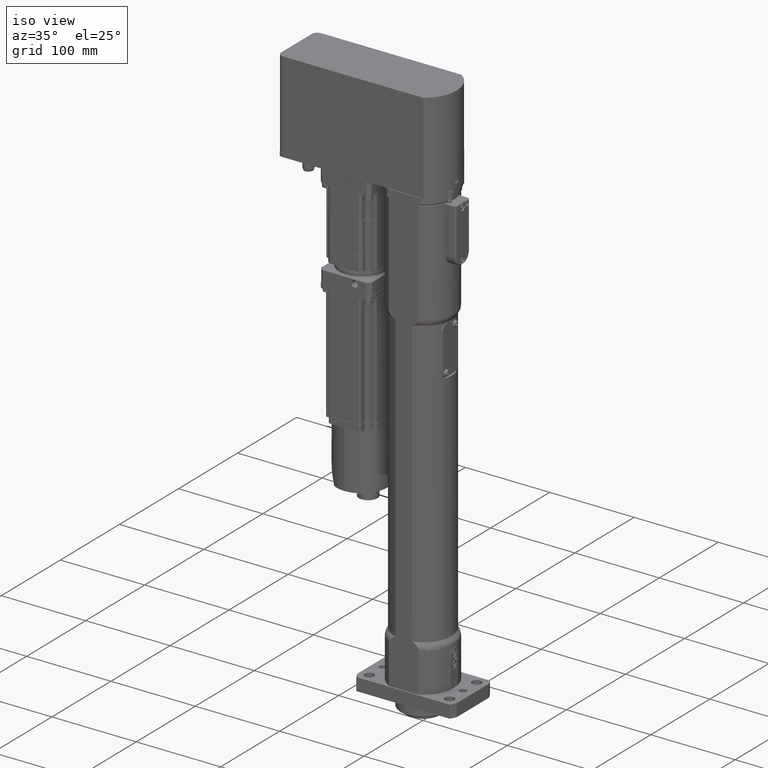
[diagram: clean part render]
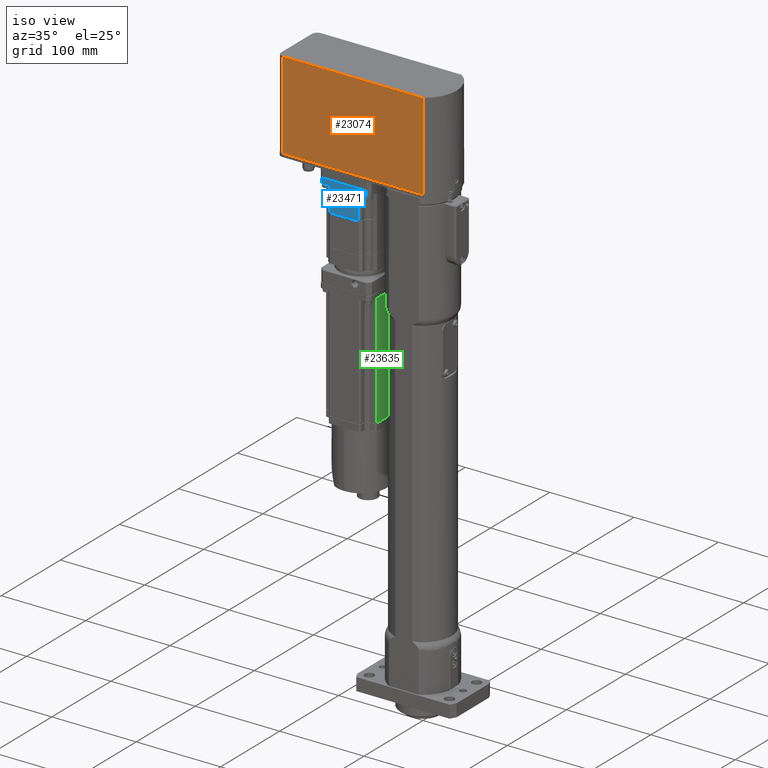
[diagram: same view with three faces highlighted in distinct colors, each labeled with its STEP entity id]
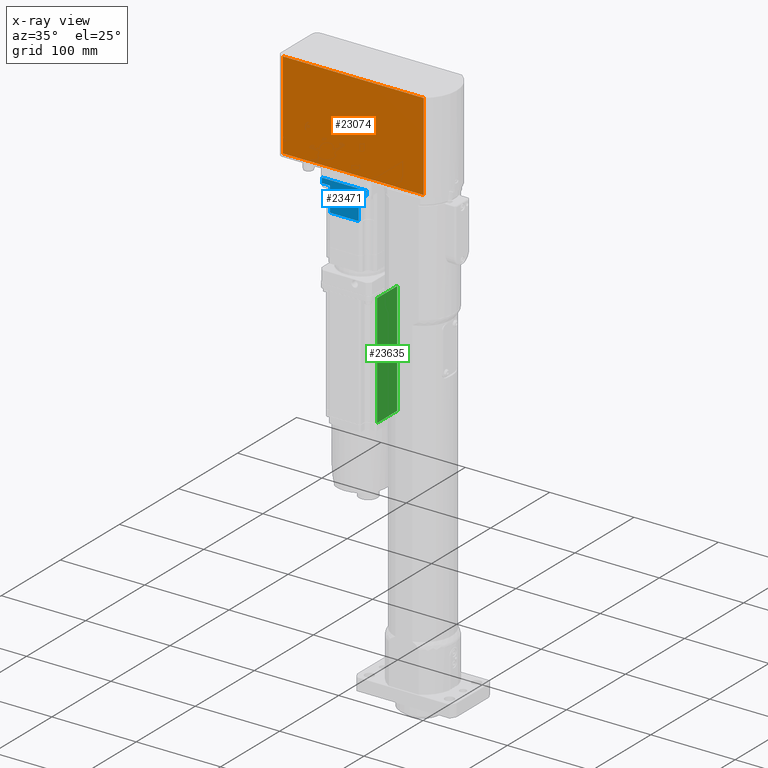
[diagram: x-ray of the same camera — body ghosted, the three highlighted faces saturated]
A machine part, iso view with three faces highlighted in distinct colors.
The next image is the same camera in x-ray (body ghosted, the three faces saturated) — at least one of them is partly hidden behind the body in this view.
Their STEP definitions:

[orange] entity #23074 — the highlighted planar face has unit normal (0, -1, 0).
#2977=FACE_OUTER_BOUND('',#4364,.T.);
#4364=EDGE_LOOP('',(#17292,#17293,#17294,#17295));
#5312=LINE('',#33076,#7094);
#6053=LINE('',#42306,#7835);
#6054=LINE('',#42309,#7836);
#6055=LINE('',#42310,#7837);
#7094=VECTOR('',#26672,10.);
#7835=VECTOR('',#28495,10.);
#7836=VECTOR('',#28498,10.);
#7837=VECTOR('',#28499,10.);
#8682=VERTEX_POINT('',#31931);
#8955=VERTEX_POINT('',#33072);
#9771=VERTEX_POINT('',#42304);
#9772=VERTEX_POINT('',#42308);
#11163=EDGE_CURVE('',#8682,#8955,#5312,.T.);
#12422=EDGE_CURVE('',#8955,#9771,#6053,.T.);
#12423=EDGE_CURVE('',#9772,#9771,#6054,.T.);
#12424=EDGE_CURVE('',#8682,#9772,#6055,.T.);
#17292=ORIENTED_EDGE('',*,*,#11163,.T.);
#17293=ORIENTED_EDGE('',*,*,#12422,.T.);
#17294=ORIENTED_EDGE('',*,*,#12423,.F.);
#17295=ORIENTED_EDGE('',*,*,#12424,.F.);
#20880=PLANE('',#24665);
#23074=ADVANCED_FACE('',(#2977),#20880,.T.);
#24665=AXIS2_PLACEMENT_3D('',#42307,#28496,#28497);
#26672=DIRECTION('',(1.,3.7667155158515E-16,0.));
#28495=DIRECTION('',(0.,0.,1.));
#28496=DIRECTION('center_axis',(3.7667155158515E-16,-1.,0.));
#28497=DIRECTION('ref_axis',(1.,3.7667155158515E-16,0.));
#28498=DIRECTION('',(1.,3.7667155158515E-16,0.));
#28499=DIRECTION('',(0.,0.,1.));
#31931=CARTESIAN_POINT('',(-143.4,-32.5000000000001,552.));
#33072=CARTESIAN_POINT('',(23.3184476327221,-32.5,552.));
#33076=CARTESIAN_POINT('',(-143.4,-32.5000000000001,552.));
#42304=CARTESIAN_POINT('',(23.3184476327221,-32.5,656.));
#42306=CARTESIAN_POINT('',(23.3184476327221,-32.5,552.));
#42307=CARTESIAN_POINT('Origin',(-143.4,-32.5000000000001,552.));
#42308=CARTESIAN_POINT('',(-143.4,-32.5000000000001,656.));
#42309=CARTESIAN_POINT('',(-143.4,-32.5000000000001,656.));
#42310=CARTESIAN_POINT('',(-143.4,-32.5000000000001,552.));

[blue] entity #23471 — the highlighted planar face has unit normal (-0, -1, -0).
#3374=FACE_OUTER_BOUND('',#4791,.T.);
#4791=EDGE_LOOP('',(#19293,#19294,#19295,#19296,#19297,#19298,#19299,#19300));
#5298=LINE('',#33039,#7080);
#6486=LINE('',#45218,#8268);
#6511=LINE('',#45297,#8293);
#6514=LINE('',#45310,#8296);
#6529=LINE('',#45343,#8311);
#6531=LINE('',#45346,#8313);
#6541=LINE('',#45366,#8323);
#6542=LINE('',#45368,#8324);
#7080=VECTOR('',#26630,52.91502622129);
#8268=VECTOR('',#30334,34.0734500748);
#8293=VECTOR('',#30421,9.420788073245);
#8296=VECTOR('',#30432,9.420788073245);
#8311=VECTOR('',#30471,29.);
#8313=VECTOR('',#30475,29.);
#8323=VECTOR('',#30505,6.);
#8324=VECTOR('',#30508,6.);
#8945=VERTEX_POINT('',#33034);
#8946=VERTEX_POINT('',#33038);
#10372=VERTEX_POINT('',#45203);
#10373=VERTEX_POINT('',#45216);
#10395=VERTEX_POINT('',#45294);
#10396=VERTEX_POINT('',#45296);
#10401=VERTEX_POINT('',#45308);
#10402=VERTEX_POINT('',#45309);
#11144=EDGE_CURVE('',#8946,#8945,#5298,.T.);
#13360=EDGE_CURVE('',#10373,#10372,#6486,.T.);
#13398=EDGE_CURVE('',#10395,#10396,#6511,.T.);
#13404=EDGE_CURVE('',#10401,#10402,#6514,.T.);
#13423=EDGE_CURVE('',#10372,#10401,#6529,.T.);
#13425=EDGE_CURVE('',#10373,#10396,#6531,.T.);
#13435=EDGE_CURVE('',#8945,#10402,#6541,.T.);
#13436=EDGE_CURVE('',#8946,#10395,#6542,.T.);
#19293=ORIENTED_EDGE('',*,*,#13398,.F.);
#19294=ORIENTED_EDGE('',*,*,#13436,.F.);
#19295=ORIENTED_EDGE('',*,*,#11144,.T.);
#19296=ORIENTED_EDGE('',*,*,#13435,.T.);
#19297=ORIENTED_EDGE('',*,*,#13404,.F.);
#19298=ORIENTED_EDGE('',*,*,#13423,.F.);
#19299=ORIENTED_EDGE('',*,*,#13360,.F.);
#19300=ORIENTED_EDGE('',*,*,#13425,.T.);
#21071=PLANE('',#25426);
#23471=ADVANCED_FACE('',(#3374),#21071,.T.);
#25426=AXIS2_PLACEMENT_3D('',#45367,#30506,#30507);
#26630=DIRECTION('',(-1.,1.67849944170064E-16,-5.40621472491078E-16));
#30334=DIRECTION('',(-1.,1.67849944170064E-16,-5.40621472491078E-16));
#30421=DIRECTION('',(-1.,1.67849944170064E-16,-5.40621472491078E-16));
#30432=DIRECTION('',(-1.,1.67849944170064E-16,-5.40621472491078E-16));
#30471=DIRECTION('',(-5.40621472491078E-16,-2.47430183379366E-31,1.));
#30475=DIRECTION('',(-5.40621472491078E-16,-2.47430183379366E-31,1.));
#30505=DIRECTION('',(5.40621472491078E-16,2.47430183379366E-31,-1.));
#30506=DIRECTION('center_axis',(-1.67849944170063E-16,-1.,-3.38173467354131E-31));
#30507=DIRECTION('ref_axis',(-1.,1.67849944170064E-16,-5.40621472491078E-16));
#30508=DIRECTION('',(5.40621472491078E-16,2.47430183379366E-31,-1.));
#33034=CARTESIAN_POINT('',(-98.9575131106503,-30.,537.));
#33038=CARTESIAN_POINT('',(-46.0424868893503,-30.,537.));
#33039=CARTESIAN_POINT('',(-46.0424868893503,-30.,537.));
#45203=CARTESIAN_POINT('',(-89.5367250374003,-30.,502.));
#45216=CARTESIAN_POINT('',(-55.4632749626003,-30.,502.));
#45218=CARTESIAN_POINT('',(-55.4632749626003,-30.,502.));
#45294=CARTESIAN_POINT('',(-46.0424868893503,-30.,531.));
#45296=CARTESIAN_POINT('',(-55.4632749626003,-30.,531.));
#45297=CARTESIAN_POINT('',(-46.0424868893503,-30.,531.));
#45308=CARTESIAN_POINT('',(-89.5367250374003,-30.,531.));
#45309=CARTESIAN_POINT('',(-98.9575131106503,-30.,531.));
#45310=CARTESIAN_POINT('',(-89.5367250374003,-30.,531.));
#45343=CARTESIAN_POINT('',(-89.5367250374003,-30.,502.));
#45346=CARTESIAN_POINT('',(-55.4632749626003,-30.,502.));
#45366=CARTESIAN_POINT('',(-98.9575131106503,-30.,537.));
#45367=CARTESIAN_POINT('Origin',(-46.0424868893503,-30.,537.));
#45368=CARTESIAN_POINT('',(-46.0424868893503,-30.,537.));

[green] entity #23635 — the highlighted planar face has unit normal (1, -0, 0).
#3538=FACE_OUTER_BOUND('',#4958,.T.);
#4958=EDGE_LOOP('',(#20043,#20044,#20045,#20046));
#6698=LINE('',#45895,#8480);
#6719=LINE('',#45961,#8501);
#6744=LINE('',#46039,#8526);
#6765=LINE('',#46103,#8547);
#8480=VECTOR('',#31100,10.);
#8501=VECTOR('',#31177,10.);
#8526=VECTOR('',#31266,10.);
#8547=VECTOR('',#31341,10.);
#10560=VERTEX_POINT('',#45889);
#10561=VERTEX_POINT('',#45893);
#10578=VERTEX_POINT('',#45959);
#10599=VERTEX_POINT('',#46037);
#13697=EDGE_CURVE('',#10560,#10561,#6698,.T.);
#13730=EDGE_CURVE('',#10578,#10560,#6719,.T.);
#13769=EDGE_CURVE('',#10599,#10578,#6744,.T.);
#13801=EDGE_CURVE('',#10599,#10561,#6765,.T.);
#20043=ORIENTED_EDGE('',*,*,#13697,.F.);
#20044=ORIENTED_EDGE('',*,*,#13730,.F.);
#20045=ORIENTED_EDGE('',*,*,#13769,.F.);
#20046=ORIENTED_EDGE('',*,*,#13801,.T.);
#21143=PLANE('',#25733);
#23635=ADVANCED_FACE('',(#3538),#21143,.T.);
#25733=AXIS2_PLACEMENT_3D('',#46105,#31344,#31345);
#31100=DIRECTION('',(-1.70828439083749E-15,-1.,-1.17096540618745E-30));
#31177=DIRECTION('',(5.40621472491078E-16,2.47430183379366E-31,-1.));
#31266=DIRECTION('',(1.70828439083749E-15,1.,1.17096540618745E-30));
#31341=DIRECTION('',(5.40621472491078E-16,2.47430183379366E-31,-1.));
#31344=DIRECTION('center_axis',(1.,-1.70828439083749E-15,5.40621472491078E-16));
#31345=DIRECTION('ref_axis',(-1.70828439083749E-15,-1.,-1.17096540618745E-30));
#45889=CARTESIAN_POINT('',(-42.5000000000001,17.0000000000001,284.200000000001));
#45893=CARTESIAN_POINT('',(-42.5000000000002,-17.,284.200000000001));
#45895=CARTESIAN_POINT('',(-42.5000000000001,8.50000000000006,284.200000000001));
#45959=CARTESIAN_POINT('',(-42.5000000000002,17.0000000000001,418.000000000001));
#45961=CARTESIAN_POINT('',(-42.5000000000002,17.0000000000001,418.000000000001));
#46037=CARTESIAN_POINT('',(-42.5000000000002,-17.,418.000000000001));
#46039=CARTESIAN_POINT('',(-42.5000000000002,-17.,418.000000000001));
#46103=CARTESIAN_POINT('',(-42.5000000000002,-17.,418.000000000001));
#46105=CARTESIAN_POINT('Origin',(-42.5000000000002,17.0000000000001,418.000000000001));